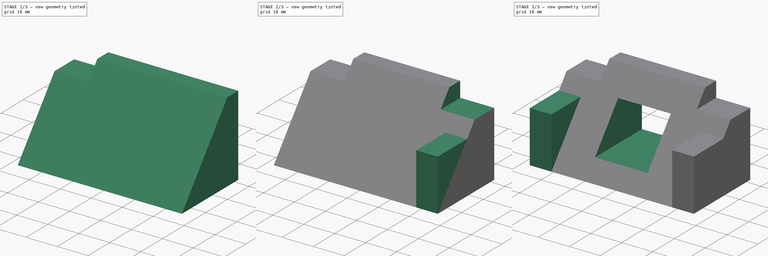
[diagram: build sequence overview — one tinted view per stage of 3, left to right]
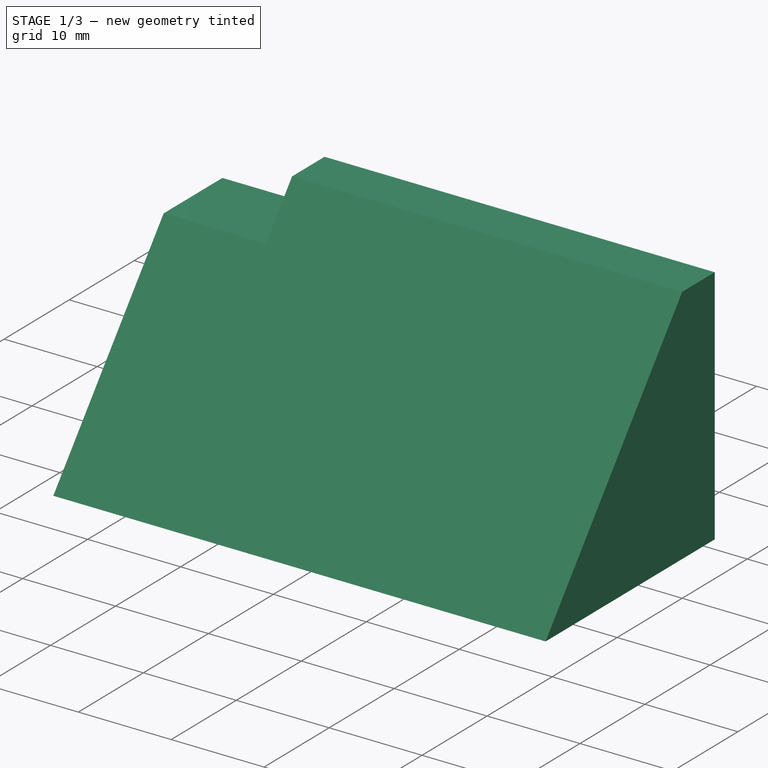
[diagram: stage 1 of 3 — iso view after this stage's code; geometry added in this stage tinted green]
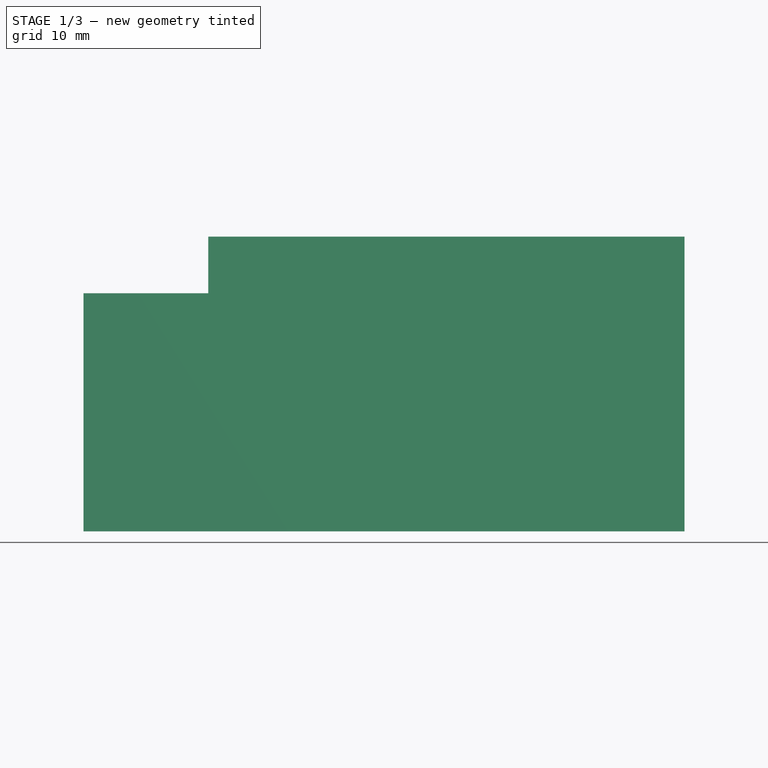
[diagram: stage 1 of 3 — front view after this stage's code; geometry added in this stage tinted green]
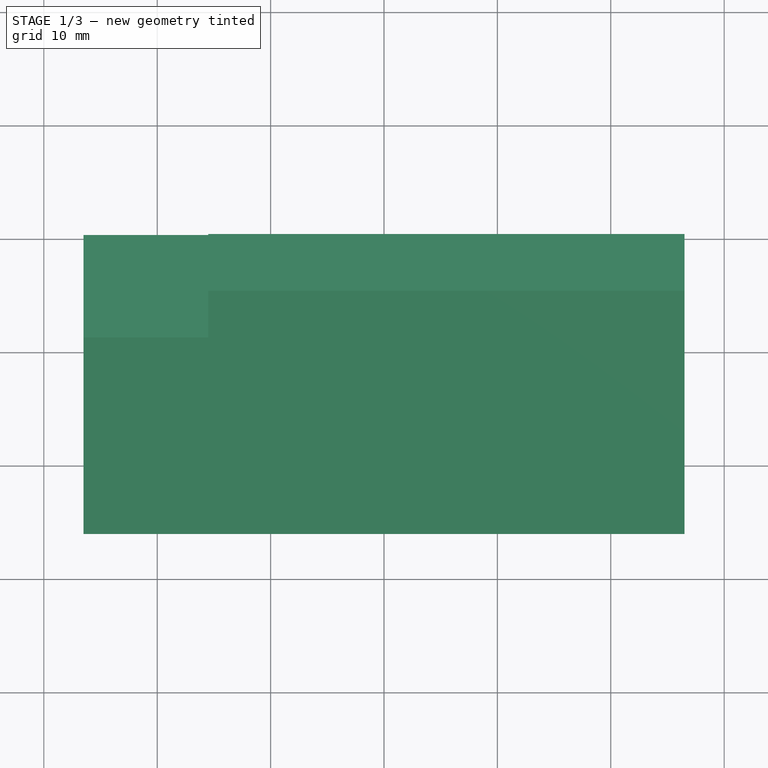
[diagram: stage 1 of 3 — top view after this stage's code; geometry added in this stage tinted green]
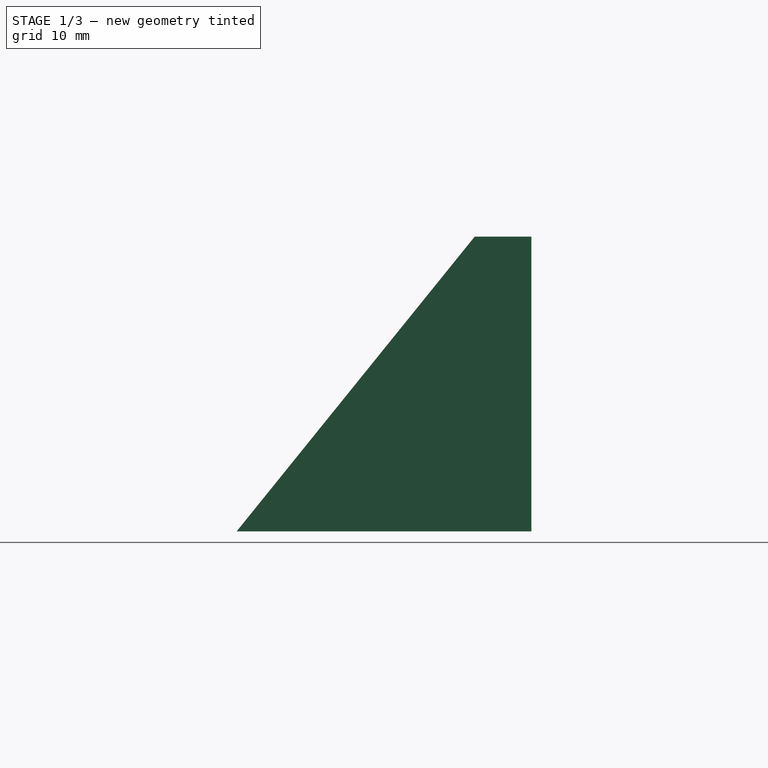
[diagram: stage 1 of 3 — right view after this stage's code; geometry added in this stage tinted green]
FCSTD DOCUMENT  (FreeCAD 0.18R16131 (Git))
Label: tutorial_01
License: All rights reserved
LicenseURL: http://en.wikipedia.org/wiki/All_rights_reserved
objects: Sketcher::SketchObject×5, PartDesign::Pad×2, PartDesign::Pocket×2, PartDesign::Mirrored×2, Part::Part2DObjectPython×1, PartDesign::FeatureBase×1, PartDesign::Body×1, TechDraw::DrawSVGTemplate×1, TechDraw::DrawPage×1
note: 18 computed .brp shape members not serialized (recipe doc carries the construction recipe); baked Part::Feature solids carry a one-line shape summary decoded from their .brp

FEATURE [Part::Part2DObjectPython] Line  # Draft 2D object (typed FeaturePython)
  ChamferSize = 0
  Closed = false
  End = (1,0,0)
  FilletRadius = 0
  Length = 1.41421
  MakeFace = true
  Points = (2) [(0,1,0),(1,0,0)]
  Start = (0,1,0)
  Subdivisions = 0
FEATURE [PartDesign::FeatureBase] BaseFeature
  BaseFeature = -> Line
FEATURE [Sketcher::SketchObject] Sketch
  MapMode = 5
  Placement = pos=(0,0,0) rot=(0.57735,0.57735,0.57735;2.0944rad)
  Support = -> [YZ_Plane]
  sketch-geometry (4):
    g0: LineSegment StartX=0 StartY=0 StartZ=0 EndX=0 EndY=26 EndZ=0
    g1: LineSegment StartX=0 StartY=26 StartZ=0 EndX=-5 EndY=26 EndZ=0
    g2: LineSegment StartX=-5 StartY=26 StartZ=0 EndX=-26 EndY=0 EndZ=0
    g3: LineSegment StartX=-26 StartY=0 StartZ=0 EndX=0 EndY=0 EndZ=0
  constraints (11):
    c: Vertical(g0)
    c: Horizontal(g3)
    c: Horizontal(g1)
    c: DistanceX(g1,g1) = 5
    c: Coincident(g0,g3)
    c: Coincident(g1,g0)
    c: Coincident(g2,g3)
    c: Coincident(g2,g1)
    c: Coincident(g-1,g0)
    c: DistanceY(g0,g0) = 26
    c: DistanceX(g3,g3) = 26
FEATURE [PartDesign::Pad] Pad
  BaseFeature = -> BaseFeature
  Length = 26.5
  Length2 = 26.5
  Profile = -> Sketch
  Type = 4
FEATURE [Sketcher::SketchObject] Sketch001
  ExternalGeometry = -> [Pad]
  MapMode = 5
  Placement = pos=(0,0,0) rot=(0,0.707107,0.707107;3.14159rad)
  Support = -> [Pad]
  sketch-geometry (4):
    g0: LineSegment StartX=15.5 StartY=21 StartZ=0 EndX=26.5 EndY=21 EndZ=0
    g1: LineSegment StartX=26.5 StartY=21 StartZ=0 EndX=26.5 EndY=26 EndZ=0
    g2: LineSegment StartX=26.5 StartY=26 StartZ=0 EndX=15.5 EndY=26 EndZ=0
    g3: LineSegment StartX=15.5 StartY=26 StartZ=0 EndX=15.5 EndY=21 EndZ=0
  constraints (11):
    c: Coincident(g0,g1)
    c: Coincident(g1,g2)
    c: Coincident(g2,g3)
    c: Coincident(g3,g0)
    c: Horizontal(g0)
    c: Horizontal(g2)
    c: Vertical(g1)
    c: Vertical(g3)
    c: DistanceX(g2,g2) = 11
    c: DistanceY(g1,g1) = 5
    c: Coincident(g1,g-3)
FEATURE [PartDesign::Pocket] Pocket
  BaseFeature = -> Pad
  Length = 5
  Length2 = 100
  Profile = -> Sketch001
  Type = 1
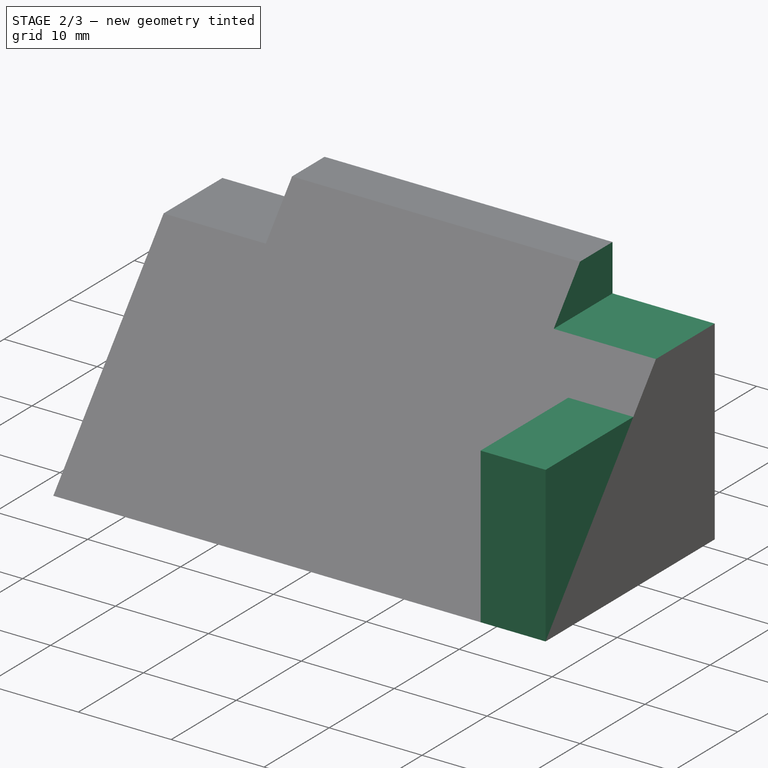
[diagram: stage 2 of 3 — iso view after this stage's code; geometry added in this stage tinted green]
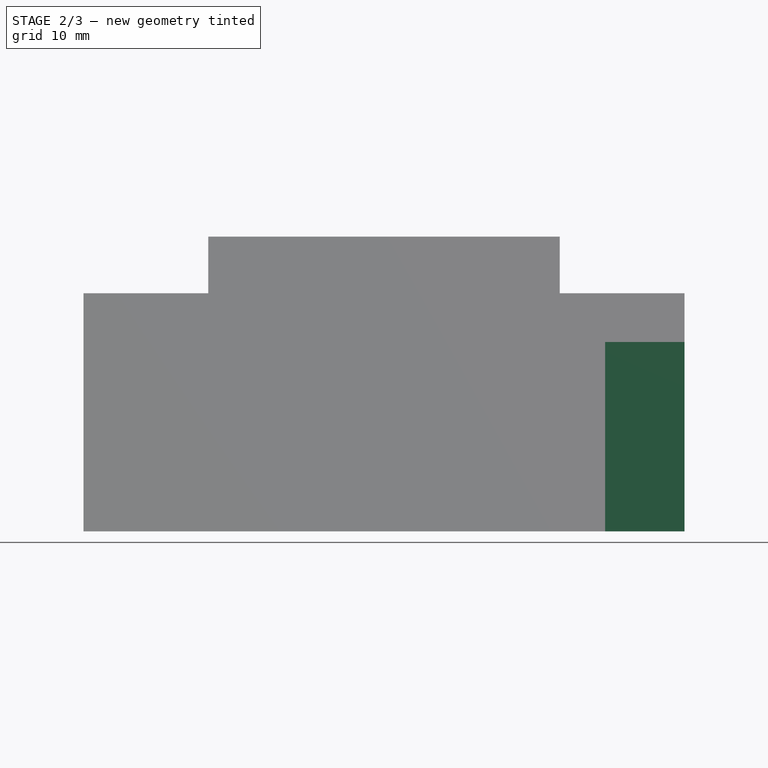
[diagram: stage 2 of 3 — front view after this stage's code; geometry added in this stage tinted green]
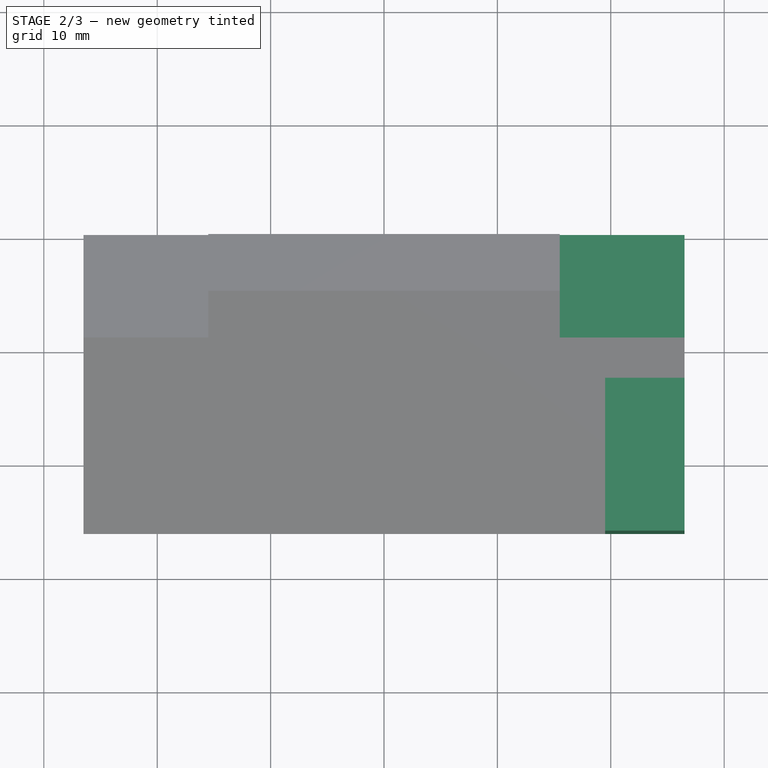
[diagram: stage 2 of 3 — top view after this stage's code; geometry added in this stage tinted green]
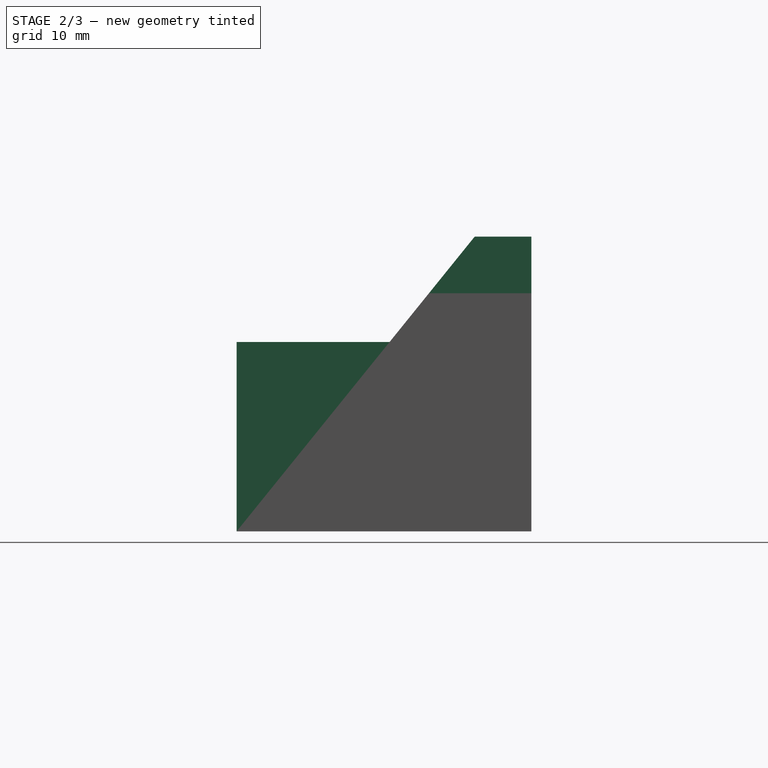
[diagram: stage 2 of 3 — right view after this stage's code; geometry added in this stage tinted green]
FEATURE [PartDesign::Mirrored] Mirrored
  BaseFeature = -> Pocket
  MirrorPlane = -> Sketch001 [V_Axis]
  Originals = -> [Pocket]
FEATURE [Sketcher::SketchObject] Sketch002
  ExternalGeometry = -> [Mirrored]
  MapMode = 5
  Placement = pos=(0,0,0) rot=(0,0.707107,0.707107;3.14159rad)
  Support = -> [Mirrored]
  sketch-geometry (4):
    g0: LineSegment StartX=-26.5 StartY=16.7 StartZ=0 EndX=-19.5 EndY=16.7 EndZ=0
    g1: LineSegment StartX=-19.5 StartY=16.7 StartZ=0 EndX=-19.5 EndY=7.1e-15 EndZ=0
    g2: LineSegment StartX=-19.5 StartY=7.3e-15 StartZ=0 EndX=-26.5 EndY=7.3e-15 EndZ=0
    g3: LineSegment StartX=-26.5 StartY=7.3e-15 StartZ=0 EndX=-26.5 EndY=16.7 EndZ=0
  constraints (11):
    c: Coincident(g0,g1)
    c: Coincident(g1,g2)
    c: Coincident(g2,g3)
    c: Coincident(g3,g0)
    c: Horizontal(g0)
    c: Horizontal(g2)
    c: Vertical(g1)
    c: Vertical(g3)
    c: DistanceY(g1,g1) = 16.7
    c: DistanceX(g2,g2) = 7
    c: Coincident(g-3,g2)
FEATURE [PartDesign::Pad] Pad001
  BaseFeature = -> Mirrored
  Length = 26
  Length2 = 100
  Profile = -> Sketch002
  Reversed = true
  Type = 0
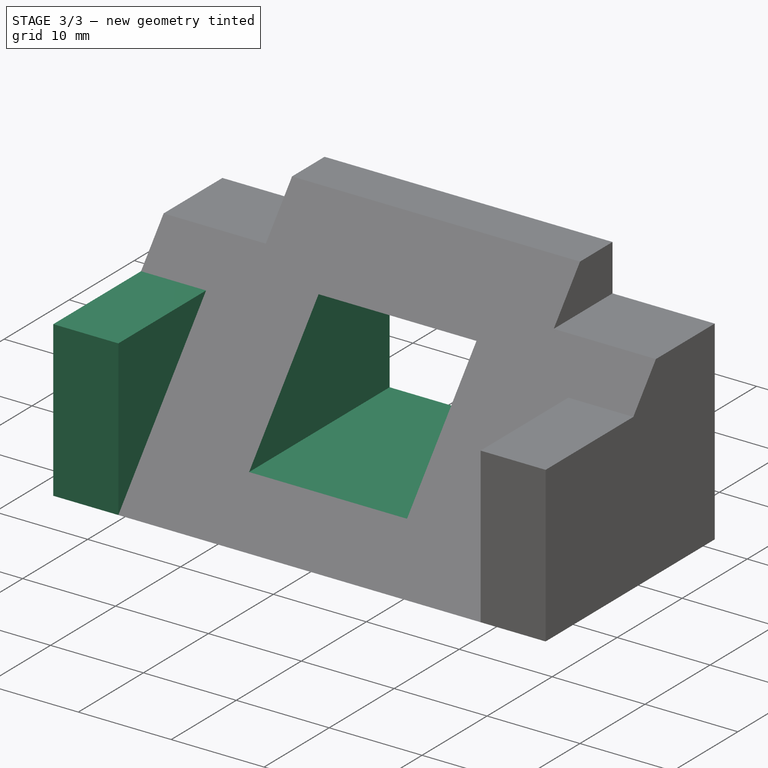
[diagram: stage 3 of 3 — iso view after this stage's code; geometry added in this stage tinted green]
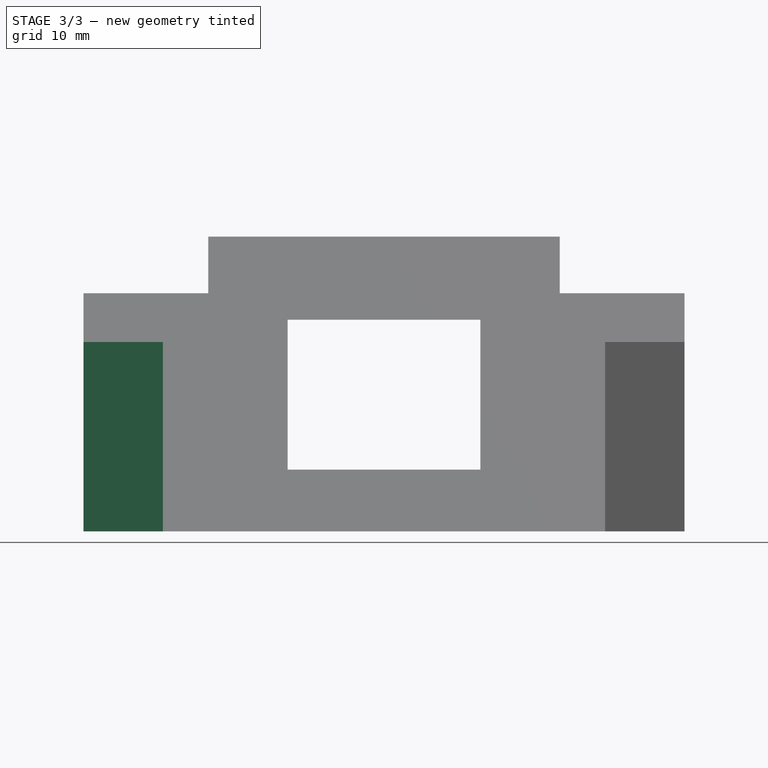
[diagram: stage 3 of 3 — front view after this stage's code; geometry added in this stage tinted green]
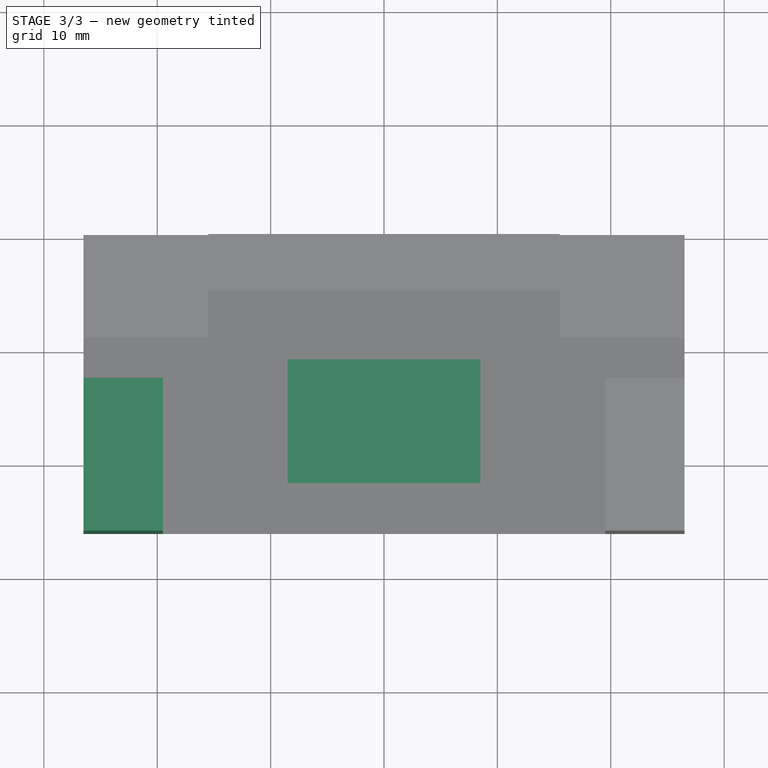
[diagram: stage 3 of 3 — top view after this stage's code; geometry added in this stage tinted green]
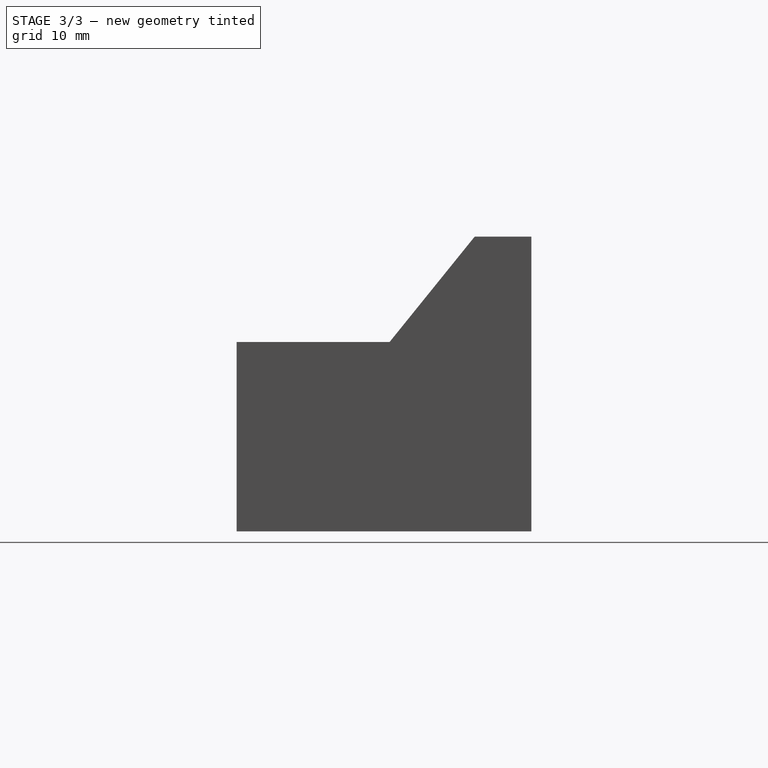
[diagram: stage 3 of 3 — right view after this stage's code; geometry added in this stage tinted green]
FEATURE [PartDesign::Mirrored] Mirrored001
  BaseFeature = -> Pad001
  MirrorPlane = -> Sketch002 [V_Axis]
  Originals = -> [Pad001]
FEATURE [Sketcher::SketchObject] Sketch003
  ExternalGeometry = -> [Mirrored001]
  MapMode = 5
  Placement = pos=(-7e-15,-15.735,12.709) rot=(1,0,0;0.891383rad)
  Support = -> [Mirrored001]
  sketch-geometry (4):
    g0: LineSegment StartX=-8.5 StartY=7.66324 StartZ=0 EndX=8.5 EndY=7.66324 EndZ=0
    g1: LineSegment StartX=8.5 StartY=7.66324 StartZ=0 EndX=8.5 EndY=-9.33676 EndZ=0
    g2: LineSegment StartX=8.5 StartY=-9.33676 StartZ=0 EndX=-8.5 EndY=-9.33676 EndZ=0
    g3: LineSegment StartX=-8.5 StartY=-9.33676 StartZ=0 EndX=-8.5 EndY=7.66324 EndZ=0
  constraints (12):
    c: Coincident(g0,g1)
    c: Coincident(g1,g2)
    c: Coincident(g2,g3)
    c: Coincident(g3,g0)
    c: Horizontal(g0)
    c: Horizontal(g2)
    c: Vertical(g1)
    c: Vertical(g3)
    c: Equal(g0,g1)
    c: DistanceY(g1,g1) = 17
    c: DistanceY(g-3,g1) = 7
    c: DistanceX(g1,g-3) = 11
FEATURE [Sketcher::SketchObject] Sketch004
  ExternalGeometry = -> [Sketch003]
  MapMode = 5
  Placement = pos=(0,0,0) rot=(0,0.707107,0.707107;3.14159rad)
  Support = -> [Mirrored001]
  sketch-geometry (4):
    g0: LineSegment StartX=-8.5 StartY=18.6706 StartZ=0 EndX=8.5 EndY=18.6706 EndZ=0
    g1: LineSegment StartX=8.5 StartY=18.6706 StartZ=0 EndX=8.5 EndY=5.44559 EndZ=0
    g2: LineSegment StartX=8.5 StartY=5.44559 StartZ=0 EndX=-8.5 EndY=5.44559 EndZ=0
    g3: LineSegment StartX=-8.5 StartY=5.44559 StartZ=0 EndX=-8.5 EndY=18.6706 EndZ=0
  constraints (10):
    c: Coincident(g0,g1)
    c: Coincident(g1,g2)
    c: Coincident(g2,g3)
    c: Coincident(g3,g0)
    c: Horizontal(g0)
    c: Horizontal(g2)
    c: Vertical(g1)
    c: Vertical(g3)
    c: Coincident(g-3,g0)
    c: Coincident(g1,g-4)
FEATURE [PartDesign::Pocket] Pocket001
  BaseFeature = -> Mirrored001
  Length = 5
  Length2 = 100
  Profile = -> Sketch004
  Refine = true
  Type = 1
FEATURE [PartDesign::Body] Body
  BaseFeature = -> Line
  Group = -> [BaseFeature,Sketch,Pad,Sketch001,Pocket,Mirrored,Sketch002,Pad001,Mirrored001,Sketch003,Sketch004,Pocket001]
  Origin = -> Origin
  Tip = -> Pocket001
FEATURE [TechDraw::DrawSVGTemplate] Template
  EditableTexts = Designed_by_Name=Designed by Name; Drawing_number=Drawing number; FC-Date=Date; FC-SC=Scale; FC-SH=Sheet; FC-Title=Title; Subtitle=Subtitle; Weight=Weight
  Height = 210
  Orientation = 1
  Width = 297
FEATURE [TechDraw::DrawPage] Page
  KeepUpdated = true
  ProjectionType = 0
  Template = -> Template
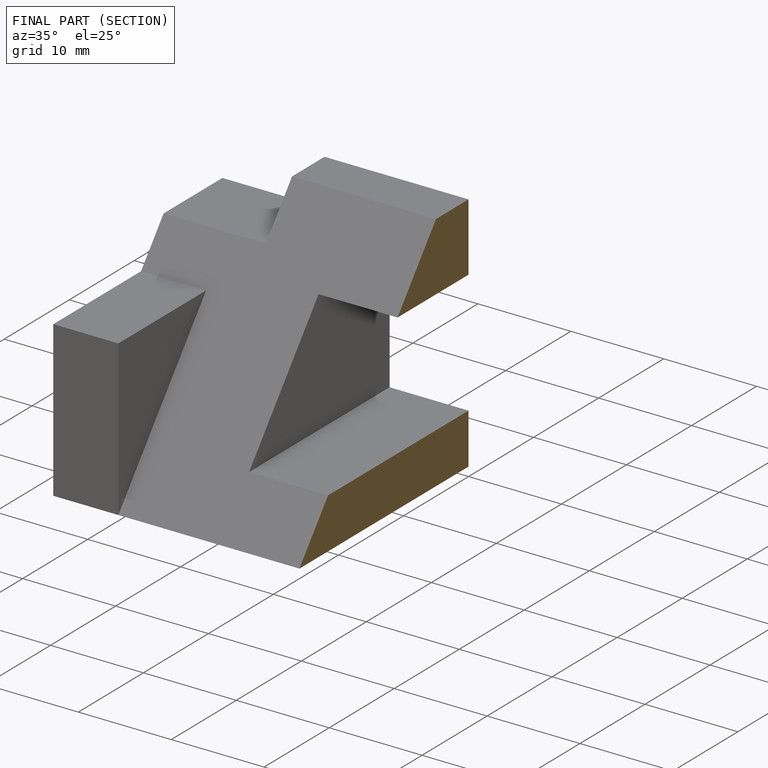
[diagram: finished part — half-section view (interior)]
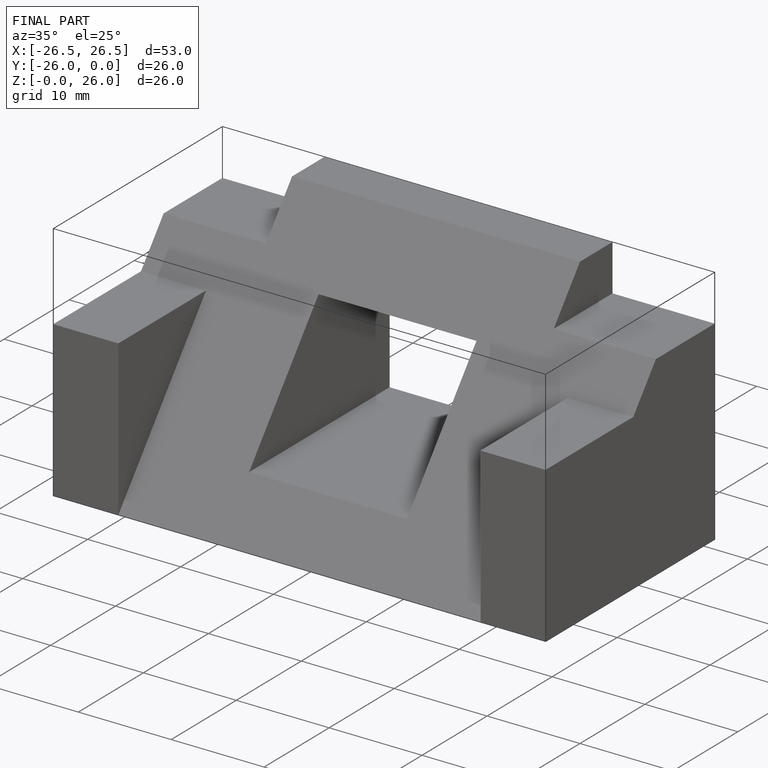
[diagram: finished part — iso view with bounding-box wireframe]
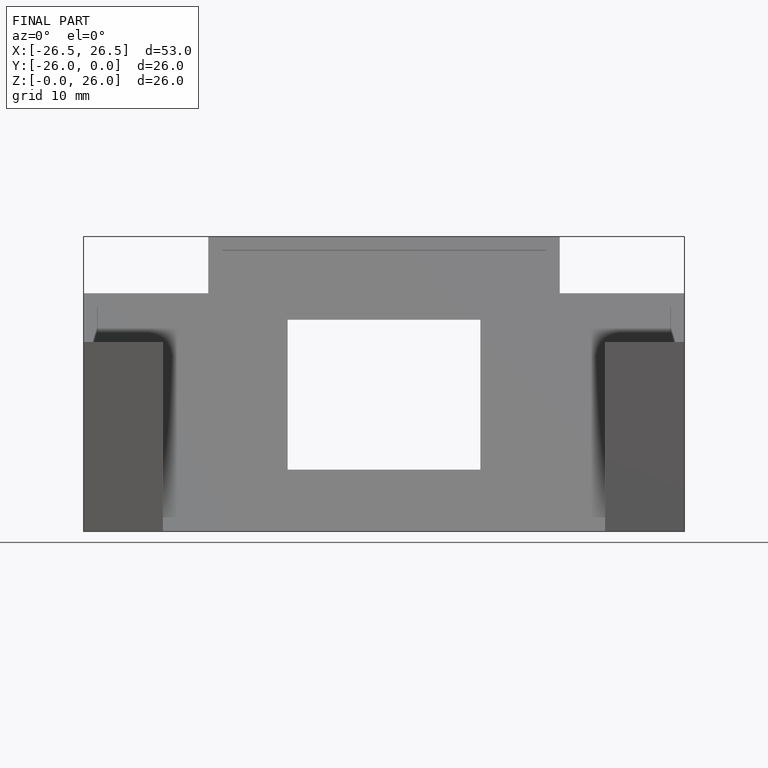
[diagram: finished part — front view with bounding-box wireframe]
